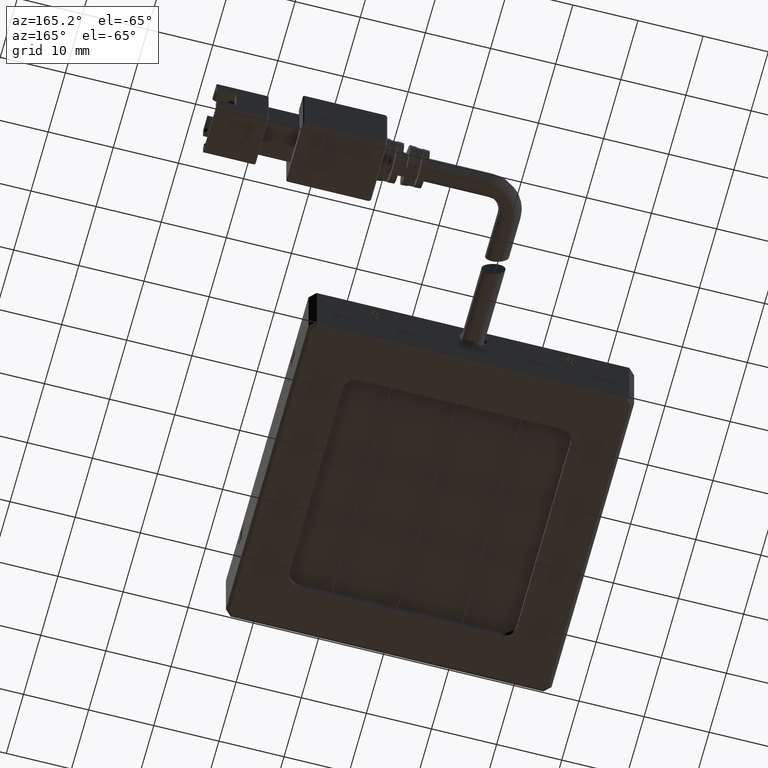
[diagram: clean part render]
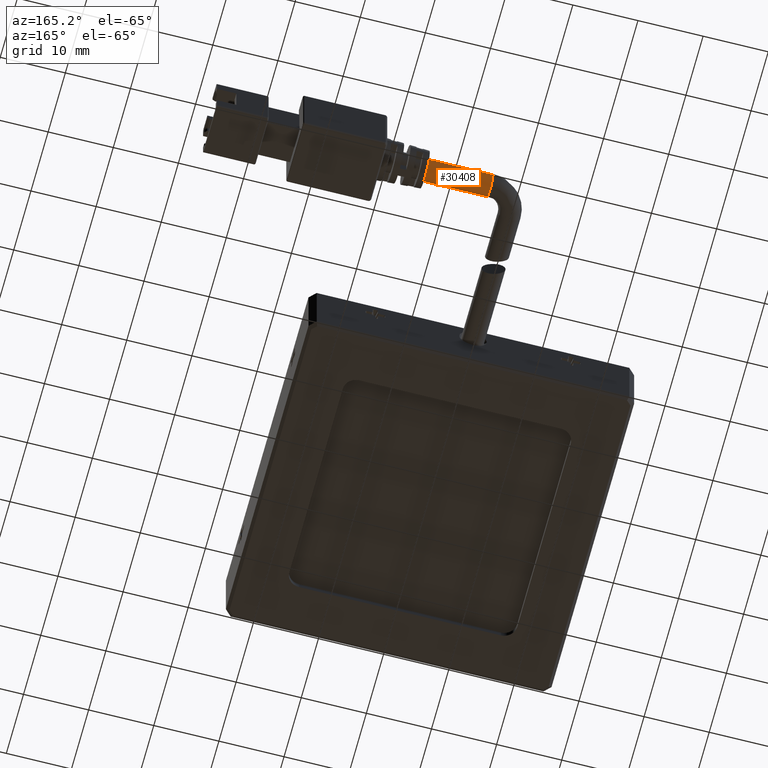
[diagram: same view with one face highlighted and labeled with its STEP entity id]
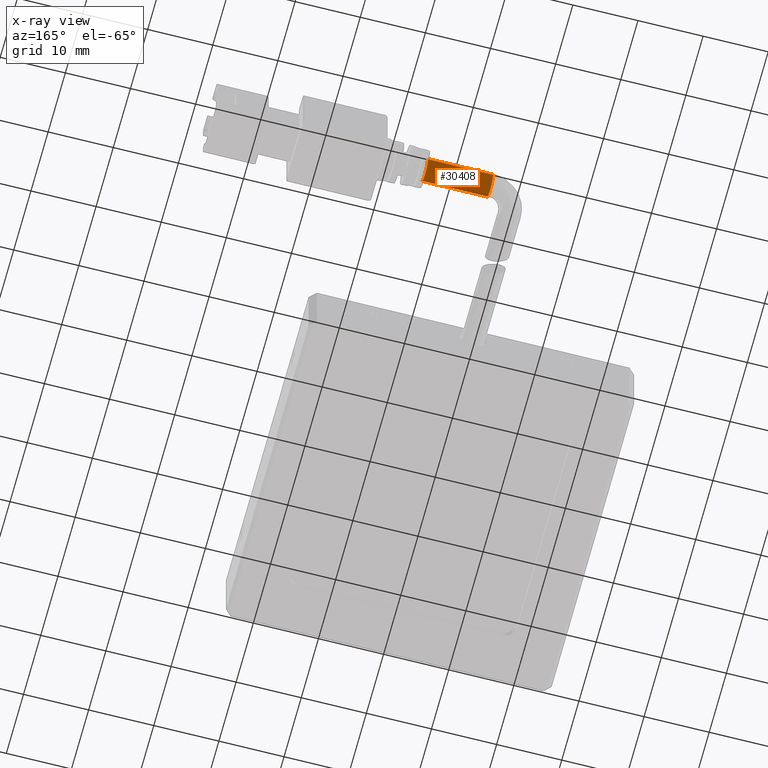
[diagram: x-ray of the same camera — body ghosted, the highlighted face saturated]
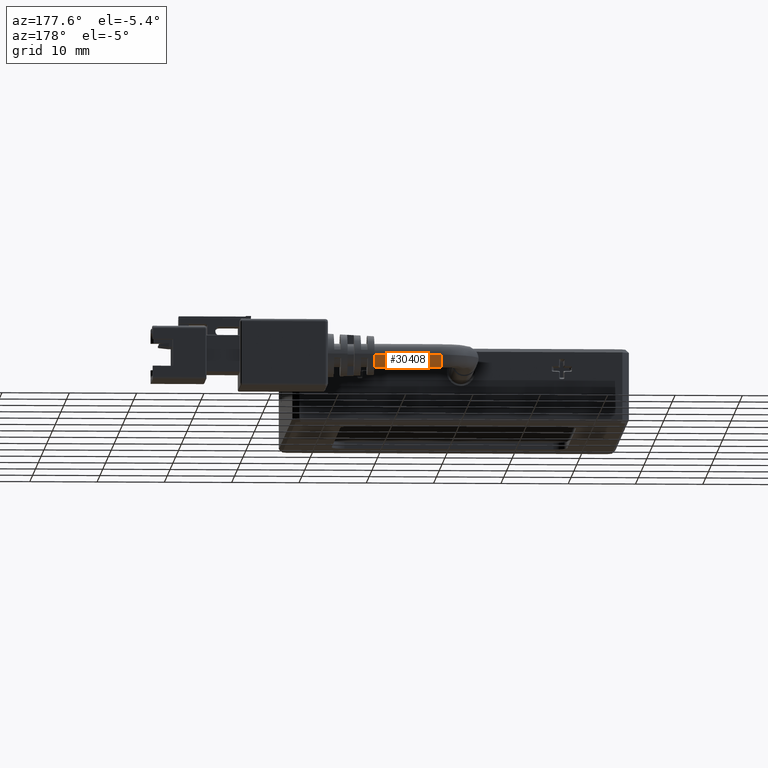
[diagram: same view with one face highlighted and labeled with its STEP entity id]
A machine part, auxiliary view. The second image highlights one B-rep face of the part: STEP entity #30408.
The next image is the same camera in x-ray: the body ghosted, the highlighted face saturated — about 0% of this face is hidden behind the body in this view.
A second angle (auxiliary view) of the same face is appended — the face is thin or edge-on in the first view.
In plain terms, the highlighted cylindrical surface (edge-blend (fillet) strip) has radius 1.75 mm, axis along (1, 0, 0).
Its self-contained STEP definition (entity closure, byte-faithful):
#1388 = VERTEX_POINT ( 'NONE', #12243 ) ;
#1750 = FACE_OUTER_BOUND ( 'NONE', #28290, .T. ) ;
#2432 = VERTEX_POINT ( 'NONE', #27097 ) ;
#5278 = CARTESIAN_POINT ( 'NONE',  ( 33.26702531645572200, 64.21113924050634100, -1.250000000000000700 ) ) ;
#6020 = CARTESIAN_POINT ( 'NONE',  ( 26.26702531645571900, 64.21113924050634100, -1.250000000000000700 ) ) ;
#6885 = VERTEX_POINT ( 'NONE', #22720 ) ;
#7713 = CARTESIAN_POINT ( 'NONE',  ( 26.26702531645571900, 62.46113924050633400, -1.250000000000000200 ) ) ;
#8398 = LINE ( 'NONE', #7713, #33309 ) ;
#8540 = DIRECTION ( 'NONE',  ( 0.0000000000000000000, 1.000000000000000000, -1.239088197126289600E-016 ) ) ;
#8622 = AXIS2_PLACEMENT_3D ( 'NONE', #15630, #38371, #18876 ) ;
#8633 = VECTOR ( 'NONE', #31968, 1000.000000000000000 ) ;
#9220 = CARTESIAN_POINT ( 'NONE',  ( 26.26702531645571900, 65.96113924050634100, -1.250000000000000900 ) ) ;
#10874 = VERTEX_POINT ( 'NONE', #16551 ) ;
#12243 = CARTESIAN_POINT ( 'NONE',  ( 33.26702531645572200, 65.96113924050634100, -1.250000000000000900 ) ) ;
#13838 = CIRCLE ( 'NONE', #27108, 1.750000000000001600 ) ;
#14249 = ORIENTED_EDGE ( 'NONE', *, *, #30803, .T. ) ;
#15630 = CARTESIAN_POINT ( 'NONE',  ( 23.26702531645571900, 64.21113924050634100, -1.250000000000000700 ) ) ;
#15997 = CIRCLE ( 'NONE', #8622, 1.750000000000001600 ) ;
#16551 = CARTESIAN_POINT ( 'NONE',  ( 33.26702531645572200, 62.46113924050633400, -1.250000000000000200 ) ) ;
#17831 = ORIENTED_EDGE ( 'NONE', *, *, #20379, .T. ) ;
#18876 = DIRECTION ( 'NONE',  ( 0.0000000000000000000, 1.000000000000000000, -1.239088197126289600E-016 ) ) ;
#19752 = EDGE_CURVE ( 'NONE', #10874, #1388, #13838, .T. ) ;
#20379 = EDGE_CURVE ( 'NONE', #6885, #1388, #33530, .T. ) ;
#22273 = DIRECTION ( 'NONE',  ( 1.000000000000000000, 0.0000000000000000000, 0.0000000000000000000 ) ) ;
#22720 = CARTESIAN_POINT ( 'NONE',  ( 23.26702531645571900, 65.96113924050634100, -1.250000000000000700 ) ) ;
#26317 = AXIS2_PLACEMENT_3D ( 'NONE', #6020, #22273, #28946 ) ;
#27097 = CARTESIAN_POINT ( 'NONE',  ( 23.26702531645571900, 62.46113924050633400, -1.250000000000000900 ) ) ;
#27108 = AXIS2_PLACEMENT_3D ( 'NONE', #5278, #28072, #8540 ) ;
#27216 = DIRECTION ( 'NONE',  ( 1.000000000000000000, 0.0000000000000000000, 0.0000000000000000000 ) ) ;
#28072 = DIRECTION ( 'NONE',  ( 1.000000000000000000, 0.0000000000000000000, 0.0000000000000000000 ) ) ;
#28290 = EDGE_LOOP ( 'NONE', ( #42036, #14249, #17831, #34584 ) ) ;
#28946 = DIRECTION ( 'NONE',  ( 0.0000000000000000000, 1.000000000000000000, -1.239088197126289600E-016 ) ) ;
#30408 = ADVANCED_FACE ( 'NONE', ( #1750 ), #31261, .T. ) ;
#30803 = EDGE_CURVE ( 'NONE', #2432, #6885, #15997, .T. ) ;
#31261 = CYLINDRICAL_SURFACE ( 'NONE', #26317, 1.750000000000001600 ) ;
#31968 = DIRECTION ( 'NONE',  ( 1.000000000000000000, 0.0000000000000000000, 0.0000000000000000000 ) ) ;
#33309 = VECTOR ( 'NONE', #27216, 1000.000000000000000 ) ;
#33530 = LINE ( 'NONE', #9220, #8633 ) ;
#33999 = EDGE_CURVE ( 'NONE', #2432, #10874, #8398, .T. ) ;
#34584 = ORIENTED_EDGE ( 'NONE', *, *, #19752, .F. ) ;
#38371 = DIRECTION ( 'NONE',  ( 1.000000000000000000, 0.0000000000000000000, 0.0000000000000000000 ) ) ;
#42036 = ORIENTED_EDGE ( 'NONE', *, *, #33999, .F. ) ;